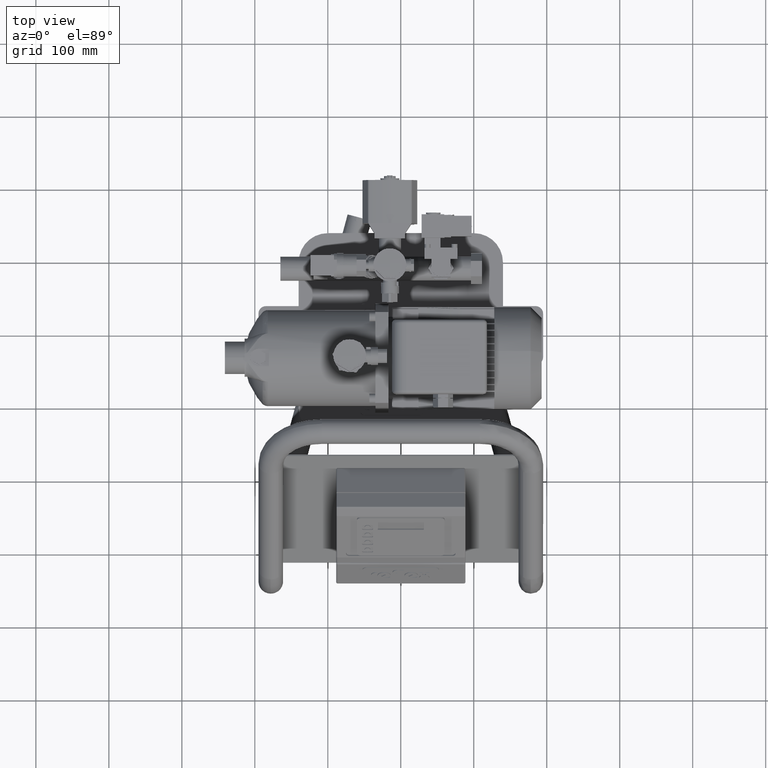
[diagram: clean part render]
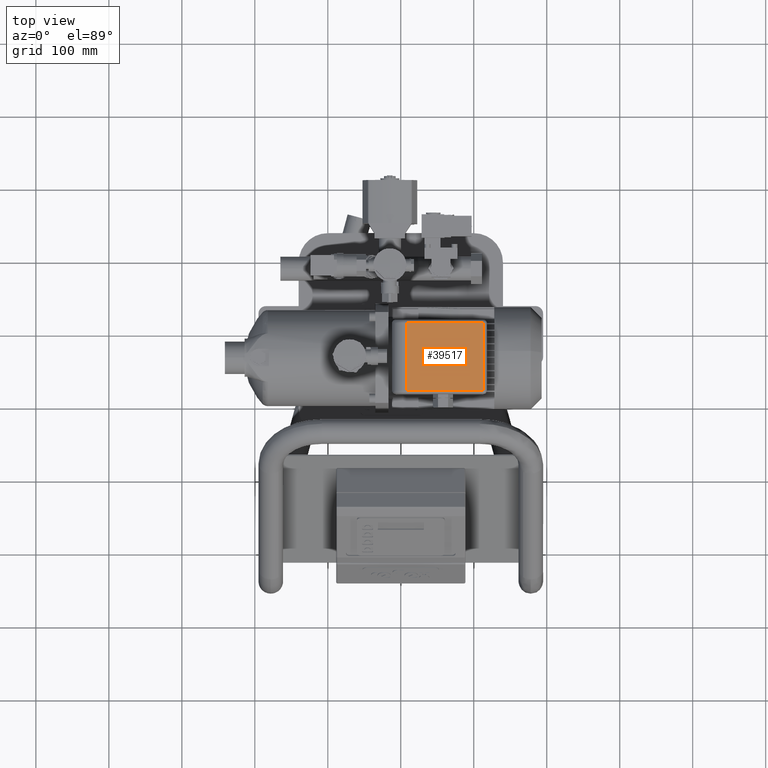
[diagram: same view with one face highlighted and labeled with its STEP entity id]
A machine part, top view. The second image highlights one B-rep face of the part: STEP entity #39517.
In plain terms, the highlighted planar face has unit normal (0, 0, 1).
Its self-contained STEP definition (entity closure, byte-faithful):
#39407=CARTESIAN_POINT('',(112.899999999999950,13.000000000000046,266.500000000000000));
#39408=VERTEX_POINT('',#39407);
#39416=CARTESIAN_POINT('',(112.899999999999950,-78.999999999999972,266.500000000000000));
#39417=VERTEX_POINT('',#39416);
#39418=CARTESIAN_POINT('',(112.899999999999950,13.000000000000046,266.500000000000000));
#39419=DIRECTION('',(0.0,-1.0,0.0));
#39420=VECTOR('',#39419,92.000000000000014);
#39421=LINE('',#39418,#39420);
#39422=EDGE_CURVE('',#39408,#39417,#39421,.T.);
#39475=CARTESIAN_POINT('',(7.899999999999963,-78.999999999999986,266.500000000000000));
#39476=VERTEX_POINT('',#39475);
#39477=CARTESIAN_POINT('',(112.899999999999950,-78.999999999999972,266.500000000000000));
#39478=DIRECTION('',(-1.0,0.0,0.0));
#39479=VECTOR('',#39478,104.999999999999990);
#39480=LINE('',#39477,#39479);
#39481=EDGE_CURVE('',#39417,#39476,#39480,.T.);
#39494=CARTESIAN_POINT('',(52.899999999999935,-32.999999999999957,266.500000000000000));
#39495=DIRECTION('',(0.0,0.0,1.0));
#39496=DIRECTION('',(1.0,0.0,0.0));
#39497=AXIS2_PLACEMENT_3D('',#39494,#39495,#39496);
#39498=PLANE('',#39497);
#39499=ORIENTED_EDGE('',*,*,#39422,.F.);
#39500=CARTESIAN_POINT('',(7.899999999999949,13.000000000000068,266.500000000000000));
#39501=VERTEX_POINT('',#39500);
#39502=CARTESIAN_POINT('',(7.899999999999949,13.000000000000068,266.500000000000000));
#39503=DIRECTION('',(1.0,0.0,0.0));
#39504=VECTOR('',#39503,105.0);
#39505=LINE('',#39502,#39504);
#39506=EDGE_CURVE('',#39501,#39408,#39505,.T.);
#39507=ORIENTED_EDGE('',*,*,#39506,.F.);
#39508=CARTESIAN_POINT('',(7.899999999999963,-78.999999999999986,266.500000000000000));
#39509=DIRECTION('',(0.0,1.0,0.0));
#39510=VECTOR('',#39509,92.000000000000057);
#39511=LINE('',#39508,#39510);
#39512=EDGE_CURVE('',#39476,#39501,#39511,.T.);
#39513=ORIENTED_EDGE('',*,*,#39512,.F.);
#39514=ORIENTED_EDGE('',*,*,#39481,.F.);
#39515=EDGE_LOOP('',(#39499,#39507,#39513,#39514));
#39516=FACE_OUTER_BOUND('',#39515,.T.);
#39517=ADVANCED_FACE('',(#39516),#39498,.T.);